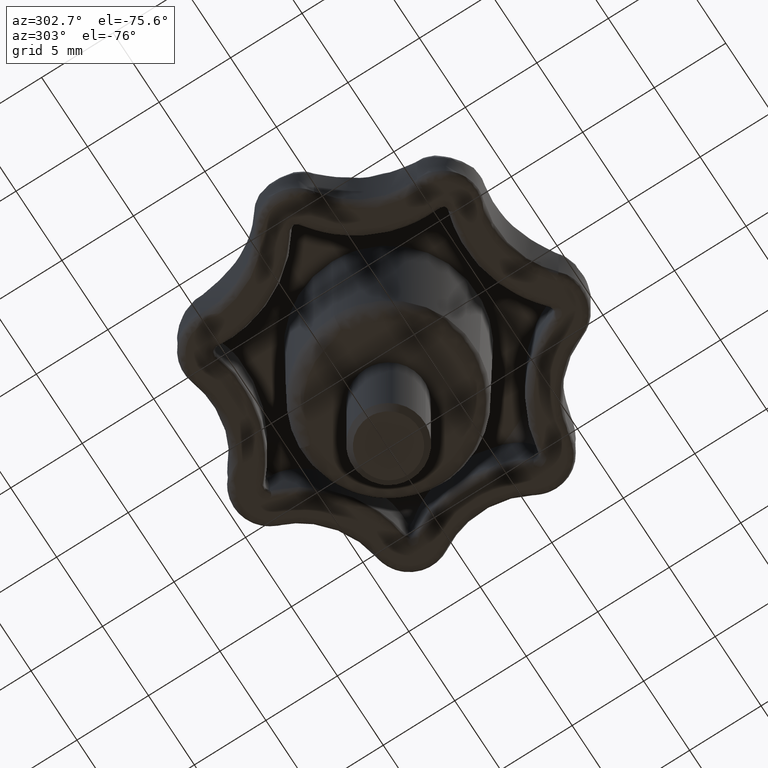
[diagram: clean part render]
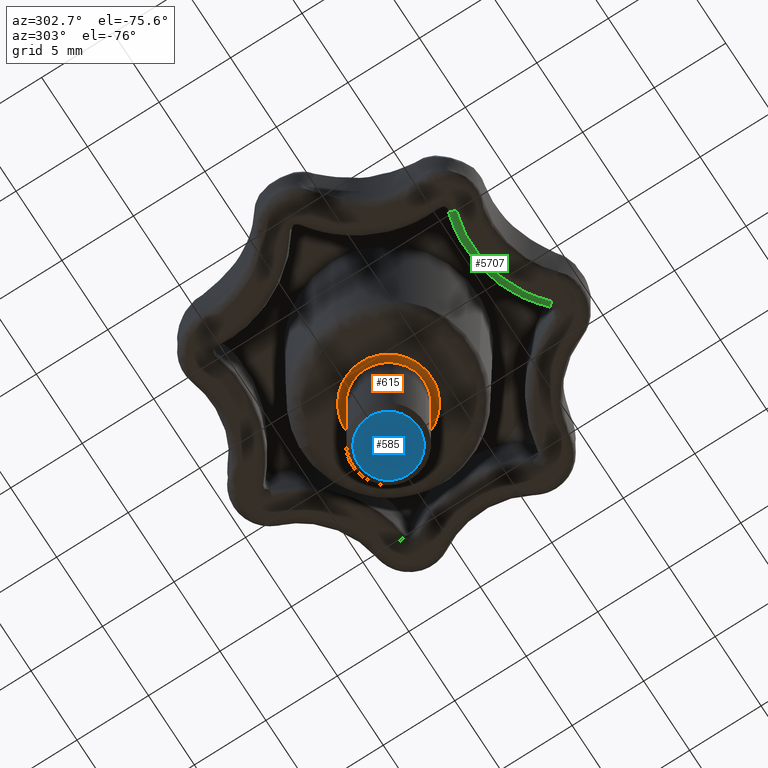
[diagram: same view with three faces highlighted in distinct colors, each labeled with its STEP entity id]
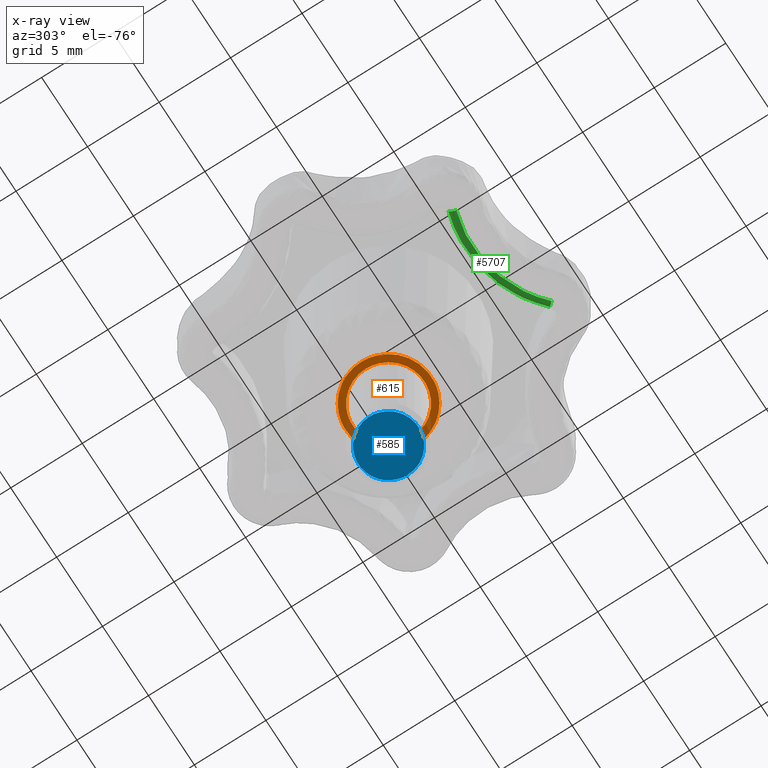
[diagram: x-ray of the same camera — body ghosted, the three highlighted faces saturated]
A machine part, auxiliary view with three faces highlighted in distinct colors.
The next image is the same camera in x-ray (body ghosted, the three faces saturated) — at least one of them is partly hidden behind the body in this view.
Their STEP definitions:

[orange] entity #615 — the highlighted face is a freeform B-spline surface patch.
#283=CARTESIAN_POINT('',(-0.295085586655258,2.482523815907578,3.123371E-016));
#284=VERTEX_POINT('',#283);
#290=CARTESIAN_POINT('',(2.500000000000000,0.0,0.0));
#291=VERTEX_POINT('',#290);
#292=CARTESIAN_POINT('',(-0.295085586655258,2.482523815907578,3.123371E-016));
#293=CARTESIAN_POINT('',(-0.148060299143278,2.500000000000000,0.0));
#294=CARTESIAN_POINT('',(0.0,2.500000000000000,0.0));
#295=CARTESIAN_POINT('',(2.500000000000000,2.500000000000000,0.0));
#296=CARTESIAN_POINT('',(2.500000000000000,0.0,0.0));
#304=(BOUNDED_CURVE()B_SPLINE_CURVE(2,(#292,#293,#294,#295,#296),.UNSPECIFIED.,.F.,.U.)B_SPLINE_CURVE_WITH_KNOTS((3,2,3),(0.229562473513825,0.250000000000000,0.500000000000000),.UNSPECIFIED.)CURVE()GEOMETRIC_REPRESENTATION_ITEM()RATIONAL_B_SPLINE_CURVE((0.956026754184320,0.976055948331516,1.0,0.707106781186548,1.0))REPRESENTATION_ITEM(''));
#305=EDGE_CURVE('',#284,#291,#304,.T.);
#307=CARTESIAN_POINT('',(0.152618109150758,-2.495337194198153,-2.359224E-016));
#308=VERTEX_POINT('',#307);
#309=CARTESIAN_POINT('',(2.500000000000000,0.0,0.0));
#310=CARTESIAN_POINT('',(2.500000000000000,-2.351768226259134,0.0));
#311=CARTESIAN_POINT('',(0.152618109150758,-2.495337194198152,-2.359224E-016));
#319=(BOUNDED_CURVE()B_SPLINE_CURVE(2,(#309,#310,#311),.UNSPECIFIED.,.F.,.U.)B_SPLINE_CURVE_WITH_KNOTS((3,3),(0.500000000000000,0.739333186258836),.UNSPECIFIED.)CURVE()GEOMETRIC_REPRESENTATION_ITEM()RATIONAL_B_SPLINE_CURVE((1.0,0.719603730831079,0.976072521784464))REPRESENTATION_ITEM(''));
#320=EDGE_CURVE('',#291,#308,#319,.T.);
#354=CARTESIAN_POINT('',(-2.500000000000000,0.0,0.0));
#355=VERTEX_POINT('',#354);
#356=CARTESIAN_POINT('',(0.152618109150758,-2.495337194198152,-2.359224E-016));
#357=CARTESIAN_POINT('',(0.076380283861559,-2.500000000000000,0.0));
#358=CARTESIAN_POINT('',(0.0,-2.500000000000000,0.0));
#359=CARTESIAN_POINT('',(-2.500000000000000,-2.500000000000000,0.0));
#360=CARTESIAN_POINT('',(-2.500000000000000,0.0,0.0));
#368=(BOUNDED_CURVE()B_SPLINE_CURVE(2,(#356,#357,#358,#359,#360),.UNSPECIFIED.,.F.,.U.)B_SPLINE_CURVE_WITH_KNOTS((3,2,3),(0.739333186258836,0.750000000000000,1.0),.UNSPECIFIED.)CURVE()GEOMETRIC_REPRESENTATION_ITEM()RATIONAL_B_SPLINE_CURVE((0.976072521784464,0.987503050355468,1.0,0.707106781186548,1.0))REPRESENTATION_ITEM(''));
#369=EDGE_CURVE('',#308,#355,#368,.T.);
#371=CARTESIAN_POINT('',(-2.500000000000000,0.0,0.0));
#372=CARTESIAN_POINT('',(-2.499999999999999,2.220436314854350,0.0));
#373=CARTESIAN_POINT('',(-0.295085586655258,2.482523815907578,3.123371E-016));
#381=(BOUNDED_CURVE()B_SPLINE_CURVE(2,(#371,#372,#373),.UNSPECIFIED.,.F.,.U.)B_SPLINE_CURVE_WITH_KNOTS((3,3),(0.0,0.229562473513825),.UNSPECIFIED.)CURVE()GEOMETRIC_REPRESENTATION_ITEM()RATIONAL_B_SPLINE_CURVE((1.0,0.731050832855031,0.956026754184320))REPRESENTATION_ITEM(''));
#382=EDGE_CURVE('',#355,#284,#381,.T.);
#444=CARTESIAN_POINT('',(-0.183145618631779,2.994404395263922,-1.804112E-016));
#445=VERTEX_POINT('',#444);
#451=CARTESIAN_POINT('',(-3.0,-1.421085E-014,0.0));
#452=VERTEX_POINT('',#451);
#453=CARTESIAN_POINT('',(-3.0,-1.421085E-014,0.0));
#454=CARTESIAN_POINT('',(-3.000000000000000,2.822118200665676,0.0));
#455=CARTESIAN_POINT('',(-0.183145618631779,2.994404395263922,-1.804112E-016));
#463=(BOUNDED_CURVE()B_SPLINE_CURVE(2,(#453,#454,#455),.UNSPECIFIED.,.F.,.U.)B_SPLINE_CURVE_WITH_KNOTS((3,3),(0.500000000000000,0.739332962238832),.UNSPECIFIED.)CURVE()GEOMETRIC_REPRESENTATION_ITEM()RATIONAL_B_SPLINE_CURVE((1.0,0.719603993286840,0.976072041666480))REPRESENTATION_ITEM(''));
#464=EDGE_CURVE('',#452,#445,#463,.T.);
#466=CARTESIAN_POINT('',(0.354102703987403,-2.979028579088977,-1.561686E-016));
#467=VERTEX_POINT('',#466);
#468=CARTESIAN_POINT('',(0.354102703987402,-2.979028579088977,-1.561686E-016));
#469=CARTESIAN_POINT('',(0.177672358973039,-3.000000000000014,0.0));
#470=CARTESIAN_POINT('',(0.0,-3.000000000000014,0.0));
#471=CARTESIAN_POINT('',(-3.0,-3.000000000000015,0.0));
#472=CARTESIAN_POINT('',(-3.0,-1.421085E-014,0.0));
#480=(BOUNDED_CURVE()B_SPLINE_CURVE(2,(#468,#469,#470,#471,#472),.UNSPECIFIED.,.F.,.U.)B_SPLINE_CURVE_WITH_KNOTS((3,2,3),(0.229562473513701,0.250000000000000,0.500000000000000),.UNSPECIFIED.)CURVE()GEOMETRIC_REPRESENTATION_ITEM()RATIONAL_B_SPLINE_CURVE((0.956026754184077,0.976055948331371,1.0,0.707106781186548,1.0))REPRESENTATION_ITEM(''));
#481=EDGE_CURVE('',#467,#452,#480,.T.);
#525=CARTESIAN_POINT('',(3.0,-1.421085E-014,0.0));
#526=VERTEX_POINT('',#525);
#527=CARTESIAN_POINT('',(3.0,-1.421085E-014,0.0));
#528=CARTESIAN_POINT('',(3.000000000000000,-2.664523577823263,0.0));
#529=CARTESIAN_POINT('',(0.354102703987402,-2.979028579088977,-1.561686E-016));
#537=(BOUNDED_CURVE()B_SPLINE_CURVE(2,(#527,#528,#529),.UNSPECIFIED.,.F.,.U.)B_SPLINE_CURVE_WITH_KNOTS((3,3),(0.0,0.229562473513701),.UNSPECIFIED.)CURVE()GEOMETRIC_REPRESENTATION_ITEM()RATIONAL_B_SPLINE_CURVE((1.0,0.731050832855177,0.956026754184077))REPRESENTATION_ITEM(''));
#538=EDGE_CURVE('',#526,#467,#537,.T.);
#540=CARTESIAN_POINT('',(-0.183145618631779,2.994404395263922,-1.804112E-016));
#541=CARTESIAN_POINT('',(-0.091658289923052,2.999999999999985,0.0));
#542=CARTESIAN_POINT('',(0.0,2.999999999999986,0.0));
#543=CARTESIAN_POINT('',(3.0,2.999999999999985,0.0));
#544=CARTESIAN_POINT('',(3.0,-1.421085E-014,0.0));
#552=(BOUNDED_CURVE()B_SPLINE_CURVE(2,(#540,#541,#542,#543,#544),.UNSPECIFIED.,.F.,.U.)B_SPLINE_CURVE_WITH_KNOTS((3,2,3),(0.739332962238833,0.750000000000000,1.0),.UNSPECIFIED.)CURVE()GEOMETRIC_REPRESENTATION_ITEM()RATIONAL_B_SPLINE_CURVE((0.976072041666481,0.987502787899708,1.0,0.707106781186548,1.0))REPRESENTATION_ITEM(''));
#553=EDGE_CURVE('',#445,#526,#552,.T.);
#598=CARTESIAN_POINT('',(-3.299699988370835,-3.299645593606501,0.0));
#599=CARTESIAN_POINT('',(3.299700149303376,-3.299645593606501,0.0));
#600=CARTESIAN_POINT('',(-3.299699988370835,3.299626979075909,0.0));
#601=CARTESIAN_POINT('',(3.299700149303376,3.299626979075909,0.0));
#602=B_SPLINE_SURFACE_WITH_KNOTS('',1,1,((#598,#600),(#599,#601)),.UNSPECIFIED.,.F.,.F.,.U.,(2,2),(2,2),(0.0,6.599400137674212),(0.0,6.599272572682410),.UNSPECIFIED.);
#603=ORIENTED_EDGE('',*,*,#538,.T.);
#604=ORIENTED_EDGE('',*,*,#481,.T.);
#605=ORIENTED_EDGE('',*,*,#464,.T.);
#606=ORIENTED_EDGE('',*,*,#553,.T.);
#607=EDGE_LOOP('',(#603,#604,#605,#606));
#608=FACE_OUTER_BOUND('',#607,.T.);
#609=ORIENTED_EDGE('',*,*,#320,.F.);
#610=ORIENTED_EDGE('',*,*,#305,.F.);
#611=ORIENTED_EDGE('',*,*,#382,.F.);
#612=ORIENTED_EDGE('',*,*,#369,.F.);
#613=EDGE_LOOP('',(#609,#610,#611,#612));
#614=FACE_BOUND('',#613,.T.);
#615=ADVANCED_FACE('',(#608,#614),#602,.F.);

[blue] entity #585 — the highlighted face is a freeform B-spline surface patch.
#85=CARTESIAN_POINT('',(1.770384102614432,1.129486666238461,-9.999999999999911));
#86=VERTEX_POINT('',#85);
#92=CARTESIAN_POINT('',(-2.100000000000000,0.0,-10.0));
#93=VERTEX_POINT('',#92);
#94=CARTESIAN_POINT('',(-2.100000000000000,0.0,-10.0));
#95=CARTESIAN_POINT('',(-2.100000000000000,2.100000000000000,-10.000000000000002));
#96=CARTESIAN_POINT('',(0.0,2.100000000000000,-10.0));
#97=CARTESIAN_POINT('',(1.151206677628760,2.099999999999999,-9.999999999999998));
#98=CARTESIAN_POINT('',(1.770384102614431,1.129486666238461,-9.999999999999911));
#106=(BOUNDED_CURVE()B_SPLINE_CURVE(2,(#94,#95,#96,#97,#98),.UNSPECIFIED.,.F.,.U.)B_SPLINE_CURVE_WITH_KNOTS((3,2,3),(0.0,0.250000000000000,0.407950112627331),.UNSPECIFIED.)CURVE()GEOMETRIC_REPRESENTATION_ITEM()RATIONAL_B_SPLINE_CURVE((1.0,0.707106781186548,1.0,0.814949932402535,0.863729296954789))REPRESENTATION_ITEM(''));
#107=EDGE_CURVE('',#93,#86,#106,.T.);
#109=CARTESIAN_POINT('',(0.164764101030343,-2.093526400839668,-9.999999999999758));
#110=VERTEX_POINT('',#109);
#111=CARTESIAN_POINT('',(0.164764101030343,-2.093526400839668,-9.999999999999758));
#112=CARTESIAN_POINT('',(0.082509224717964,-2.100000000000000,-10.0));
#113=CARTESIAN_POINT('',(0.0,-2.100000000000000,-10.0));
#114=CARTESIAN_POINT('',(-2.100000000000000,-2.100000000000000,-10.000000000000002));
#115=CARTESIAN_POINT('',(-2.100000000000000,0.0,-10.0));
#123=(BOUNDED_CURVE()B_SPLINE_CURVE(2,(#111,#112,#113,#114,#115),.UNSPECIFIED.,.F.,.U.)B_SPLINE_CURVE_WITH_KNOTS((3,2,3),(0.736331300632464,0.750000000000000,1.0),.UNSPECIFIED.)CURVE()GEOMETRIC_REPRESENTATION_ITEM()RATIONAL_B_SPLINE_CURVE((0.969723356171184,0.983986122580996,1.0,0.707106781186548,1.0))REPRESENTATION_ITEM(''));
#124=EDGE_CURVE('',#110,#93,#123,.T.);
#228=CARTESIAN_POINT('',(2.100000000000000,0.0,-10.0));
#229=VERTEX_POINT('',#228);
#230=CARTESIAN_POINT('',(2.100000000000000,0.0,-10.0));
#231=CARTESIAN_POINT('',(2.100000000000001,-1.941220032478796,-10.000000000000002));
#232=CARTESIAN_POINT('',(0.164764101030343,-2.093526400839668,-9.999999999999758));
#240=(BOUNDED_CURVE()B_SPLINE_CURVE(2,(#230,#231,#232),.UNSPECIFIED.,.F.,.U.)B_SPLINE_CURVE_WITH_KNOTS((3,3),(0.500000000000000,0.736331300632464),.UNSPECIFIED.)CURVE()GEOMETRIC_REPRESENTATION_ITEM()RATIONAL_B_SPLINE_CURVE((1.0,0.723120658605552,0.969723356171184))REPRESENTATION_ITEM(''));
#241=EDGE_CURVE('',#229,#110,#240,.T.);
#243=CARTESIAN_POINT('',(1.770384102614431,1.129486666238461,-9.999999999999911));
#244=CARTESIAN_POINT('',(2.100000000000000,0.612838916298238,-10.0));
#245=CARTESIAN_POINT('',(2.100000000000000,0.0,-10.0));
#253=(BOUNDED_CURVE()B_SPLINE_CURVE(2,(#243,#244,#245),.UNSPECIFIED.,.F.,.U.)B_SPLINE_CURVE_WITH_KNOTS((3,3),(0.407950112627331,0.500000000000000),.UNSPECIFIED.)CURVE()GEOMETRIC_REPRESENTATION_ITEM()RATIONAL_B_SPLINE_CURVE((0.863729296954789,0.892156848784013,1.0))REPRESENTATION_ITEM(''));
#254=EDGE_CURVE('',#86,#229,#253,.T.);
#574=CARTESIAN_POINT('',(-2.309789898001045,-2.309141072906789,-10.0));
#575=CARTESIAN_POINT('',(2.309789785348267,-2.309141072906789,-10.0));
#576=CARTESIAN_POINT('',(-2.309789898001045,2.308982870854673,-10.0));
#577=CARTESIAN_POINT('',(2.309789785348267,2.308982870854673,-10.0));
#578=B_SPLINE_SURFACE_WITH_KNOTS('',1,1,((#574,#576),(#575,#577)),.UNSPECIFIED.,.F.,.F.,.U.,(2,2),(2,2),(0.0,4.619579683349311),(0.0,4.618123943761463),.UNSPECIFIED.);
#579=ORIENTED_EDGE('',*,*,#107,.T.);
#580=ORIENTED_EDGE('',*,*,#254,.T.);
#581=ORIENTED_EDGE('',*,*,#241,.T.);
#582=ORIENTED_EDGE('',*,*,#124,.T.);
#583=EDGE_LOOP('',(#579,#580,#581,#582));
#584=FACE_OUTER_BOUND('',#583,.T.);
#585=ADVANCED_FACE('',(#584),#578,.F.);

[green] entity #5707 — the highlighted face is a freeform B-spline surface patch.
#5517=CARTESIAN_POINT('',(1.674008345537060,-10.329087812901919,0.0));
#5518=VERTEX_POINT('',#5517);
#5519=CARTESIAN_POINT('',(2.018508822561215,-9.966707233324881,0.499999999999945));
#5520=VERTEX_POINT('',#5519);
#5521=CARTESIAN_POINT('',(1.674008345537060,-10.329087812901919,0.0));
#5522=CARTESIAN_POINT('',(2.018508641268356,-9.966707424027122,0.0));
#5523=CARTESIAN_POINT('',(2.018508822561215,-9.966707233324881,0.499999999999945));
#5531=(BOUNDED_CURVE()B_SPLINE_CURVE(2,(#5521,#5522,#5523),.UNSPECIFIED.,.F.,.U.)CURVE()GEOMETRIC_REPRESENTATION_ITEM()QUASI_UNIFORM_CURVE()RATIONAL_B_SPLINE_CURVE((1.0,0.707106781186548,1.0))REPRESENTATION_ITEM(''));
#5532=EDGE_CURVE('',#5518,#5520,#5531,.T.);
#5644=CARTESIAN_POINT('',(1.924501733114751,-10.628889396108374,0.001216865442884));
#5645=CARTESIAN_POINT('',(-1.583390877308059,-6.938362787483039,0.001216865442884));
#5646=CARTESIAN_POINT('',(-6.345246161736044,-8.741147152124528,0.001216865442884));
#5647=CARTESIAN_POINT('',(2.340204389719600,-10.233758719139631,-0.038869940153386));
#5648=CARTESIAN_POINT('',(-1.430160028945183,-6.267095039084894,-0.038869940153386));
#5649=CARTESIAN_POINT('',(-6.548312642252847,-8.204769528541457,-0.038869940153386));
#5650=CARTESIAN_POINT('',(2.311304822406809,-10.261228126455112,0.534675305876852));
#5651=CARTESIAN_POINT('',(-1.440812607528217,-6.313761441551928,0.534675305876852));
#5652=CARTESIAN_POINT('',(-6.534195500277867,-8.242058395936276,0.534675305876852));
#5660=(BOUNDED_SURFACE()B_SPLINE_SURFACE(2,2,((#5644,#5647,#5650),(#5645,#5648,#5651),(#5646,#5649,#5652)),.UNSPECIFIED.,.F.,.F.,.U.)B_SPLINE_SURFACE_WITH_KNOTS((3,3),(3,3),(0.0,9.899803489661743),(0.0,0.911185518983544),.UNSPECIFIED.)GEOMETRIC_REPRESENTATION_ITEM()RATIONAL_B_SPLINE_SURFACE(((0.846171488878231,0.556822740560757,0.850884472307220),(0.705213802971963,0.464065603265240,0.709141684035064),(0.847075787509538,0.557417813839387,0.851793807676966)))REPRESENTATION_ITEM('')SURFACE());
#5661=CARTESIAN_POINT('',(-5.989853428739139,-8.579861556748590,0.0));
#5662=VERTEX_POINT('',#5661);
#5663=CARTESIAN_POINT('',(-6.143006527673800,-8.103894974956571,0.499999999999945));
#5664=VERTEX_POINT('',#5663);
#5665=CARTESIAN_POINT('',(-5.989853428739139,-8.579861556748590,0.0));
#5666=CARTESIAN_POINT('',(-6.143006509694903,-8.103895030831316,0.0));
#5667=CARTESIAN_POINT('',(-6.143006527673800,-8.103894974956571,0.499999999999945));
#5675=(BOUNDED_CURVE()B_SPLINE_CURVE(2,(#5665,#5666,#5667),.UNSPECIFIED.,.F.,.U.)CURVE()GEOMETRIC_REPRESENTATION_ITEM()QUASI_UNIFORM_CURVE()RATIONAL_B_SPLINE_CURVE((1.0,0.707106781186548,1.0))REPRESENTATION_ITEM(''));
#5676=EDGE_CURVE('',#5662,#5664,#5675,.T.);
#5677=ORIENTED_EDGE('',*,*,#5676,.T.);
#5678=CARTESIAN_POINT('',(2.018508822561215,-9.966707233324881,0.499999999999945));
#5679=CARTESIAN_POINT('',(-1.509354400400521,-6.612911763476985,0.499999999999945));
#5680=CARTESIAN_POINT('',(-6.143006527673805,-8.103894974956551,0.499999999999945));
#5688=(BOUNDED_CURVE()B_SPLINE_CURVE(2,(#5678,#5679,#5680),.UNSPECIFIED.,.F.,.U.)CURVE()GEOMETRIC_REPRESENTATION_ITEM()QUASI_UNIFORM_CURVE()RATIONAL_B_SPLINE_CURVE((1.0,0.859906577227879,1.0))REPRESENTATION_ITEM(''));
#5689=EDGE_CURVE('',#5520,#5664,#5688,.T.);
#5690=ORIENTED_EDGE('',*,*,#5689,.F.);
#5691=ORIENTED_EDGE('',*,*,#5532,.F.);
#5692=CARTESIAN_POINT('',(-5.989853428739139,-8.579861556748590,0.0));
#5693=CARTESIAN_POINT('',(-1.638741094606358,-7.179791903487458,0.0));
#5694=CARTESIAN_POINT('',(1.674008345537071,-10.329087812901911,0.0));
#5702=(BOUNDED_CURVE()B_SPLINE_CURVE(2,(#5692,#5693,#5694),.UNSPECIFIED.,.F.,.U.)CURVE()GEOMETRIC_REPRESENTATION_ITEM()QUASI_UNIFORM_CURVE()RATIONAL_B_SPLINE_CURVE((1.0,0.859906577809940,1.0))REPRESENTATION_ITEM(''));
#5703=EDGE_CURVE('',#5662,#5518,#5702,.T.);
#5704=ORIENTED_EDGE('',*,*,#5703,.F.);
#5705=EDGE_LOOP('',(#5677,#5690,#5691,#5704));
#5706=FACE_OUTER_BOUND('',#5705,.T.);
#5707=ADVANCED_FACE('',(#5706),#5660,.T.);